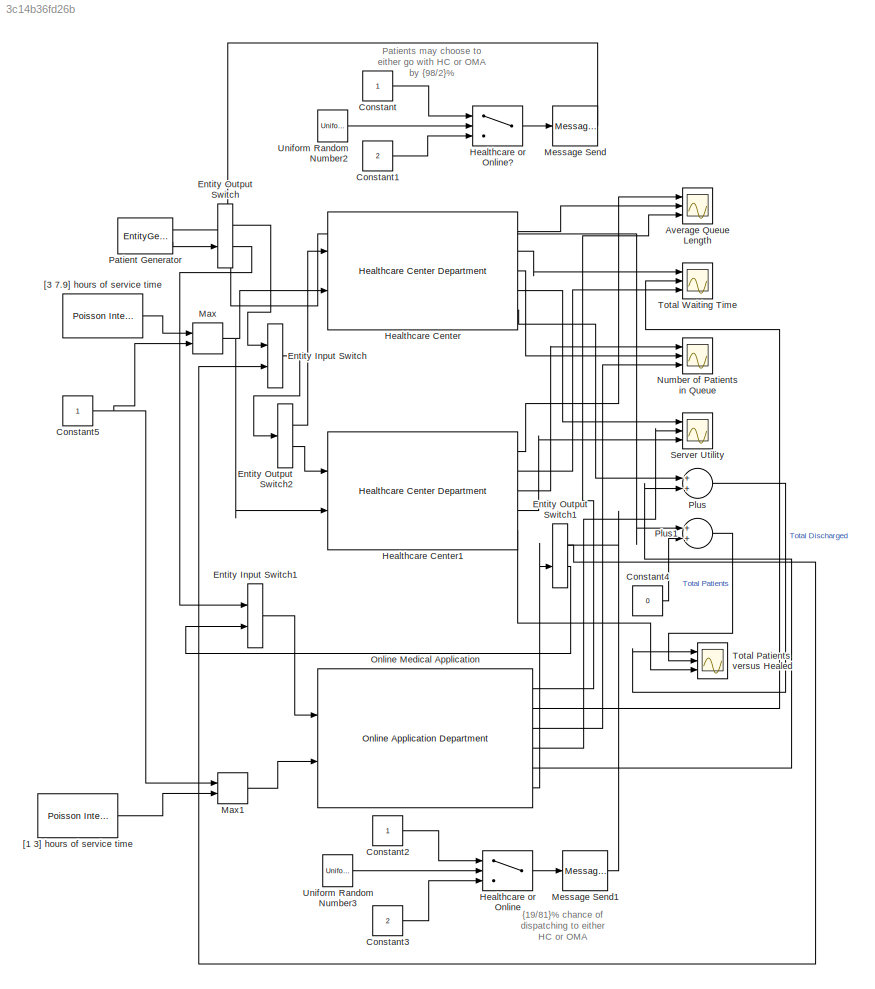
MODEL slx_3c14b36fd26b
KIND model
CONFIG AbsTol = auto
CONFIG EnableMultiTasking = off
CONFIG FixedStep = auto
CONFIG MaxStep = auto
CONFIG MinStep = auto
CONFIG RelTol = 1e-3
CONFIG SampleTimeConstraint = Unconstrained
CONFIG Solver = VariableStepAuto
CONFIG SolverName = VariableStepAuto
CONFIG StartTime = 0.0
CONFIG StopTime = 720
BLOCK [Scope] Average Queue Length
  Floating = off
  NumInputPorts = 3
  Ports = [3]
  ScopeSpecificationString = Simulink.scopes.TimeScopeBlockCfg('CurrentConfiguration', extmgr.ConfigurationSet(extmgr.Configuration('Core','General UI',true,'FigureColor',[0.831372549019608 0.815686274509804 0.784313725490196]),extmgr.Configuration('Core','Source UI',true),extmgr.Configuration('Sources','WiredSimulink',true,'DataLoggingVariableName','ScopeData1'),extmgr.Configuration('Visuals','Time Domain',true,'SerializedDi...<+2484ch>
BLOCK [Constant] Constant
  VectorParams1D = off
BLOCK [Constant] Constant1
  Value = 2
  VectorParams1D = off
BLOCK [Constant] Constant2
  VectorParams1D = off
BLOCK [Constant] Constant3
  Value = 2
  VectorParams1D = off
BLOCK [Constant] Constant4
  Value = 0
BLOCK [Constant] Constant5
  VectorParams1D = off
BLOCK [EntityInputSwitch] Entity Input Switch
  InputPortMap = u1,u2
  InputPortMessageModes = m,m
  OutputPortMap = o0
  OutputPortMessageModes = m
  Ports = [2, 1]
BLOCK [EntityInputSwitch] Entity Input Switch1
  InputPortMap = u1,u2
  InputPortMessageModes = m,m
  OutputPortMap = o0
  OutputPortMessageModes = m
  Ports = [2, 1]
BLOCK [EntityOutputSwitch] Entity Output Switch
  InputPortMap = u0,u1
  InputPortMessageModes = m,m
  OutputPortMap = o0,o1
  OutputPortMessageModes = m,m
  Ports = [2, 2]
  Seed = 12345
  SwitchAttributeName = Attribute1
  SwitchingCriterion = From control port
BLOCK [EntityOutputSwitch] Entity Output Switch1
  InputPortMap = u0,u1
  InputPortMessageModes = m,m
  OutputPortMap = o0,o1
  OutputPortMessageModes = m,m
  Ports = [2, 2]
  Seed = 12345
  SwitchAttributeName = Attribute1
  SwitchingCriterion = From control port
BLOCK [EntityOutputSwitch] Entity Output Switch2
  InputPortMap = u1
  InputPortMessageModes = m
  OutputPortMap = o0,o1
  OutputPortMessageModes = m,m
  Ports = [1, 2]
  SwitchAttributeName = Attribute1
BLOCK [Reference] Healthcare Center  REF=Healthcare_Center_Department/Healthcare Center Department
  Ports = [2, 5]
  SourceBlock = Healthcare_Center_Department/Healthcare Center Department
  SourceType = SubSystem
BLOCK [Reference] Healthcare Center1  REF=Healthcare_Center_Department/Healthcare Center Department
  Ports = [2, 5]
  SourceBlock = Healthcare_Center_Department/Healthcare Center Department
  SourceType = SubSystem
BLOCK [Switch] Healthcare or Online
  Criteria = u2 > Threshold
  InputSameDT = off
  SaturateOnIntegerOverflow = off
  Threshold = 0.81
BLOCK [Switch] Healthcare or Online?
  Criteria = u2 > Threshold
  InputSameDT = off
  SaturateOnIntegerOverflow = off
  Threshold = 0.02
BLOCK [MinMax] Max
  Function = max
  InputSameDT = off
  Inputs = 2
  Ports = [2, 1]
  SaturateOnIntegerOverflow = off
BLOCK [MinMax] Max1
  Function = max
  InputSameDT = off
  Inputs = 2
  Ports = [2, 1]
  SaturateOnIntegerOverflow = off
BLOCK [MessageSend] Message Send
  InputPortMap = u1
  OutputPortMessageModes = m
  Ports = [1, 1]
BLOCK [MessageSend] Message Send1
  InputPortMap = u1
  OutputPortMessageModes = m
  Ports = [1, 1]
BLOCK [Scope] Number of Patients in Queue
  Floating = off
  NumInputPorts = 3
  Ports = [3]
  ScopeSpecificationString = Simulink.scopes.TimeScopeBlockCfg('CurrentConfiguration', extmgr.ConfigurationSet(extmgr.Configuration('Core','General UI',true,'FigureColor',[0.831372549019608 0.815686274509804 0.784313725490196]),extmgr.Configuration('Core','Source UI',true),extmgr.Configuration('Sources','WiredSimulink',true,'DataLoggingVariableName','ScopeData2'),extmgr.Configuration('Visuals','Time Domain',true,'SerializedDi...<+2497ch>
BLOCK [Reference] Online Medical Application  REF=Online_Application_Department/Online Application Department
  Ports = [2, 6]
  SourceBlock = Online_Application_Department/Online Application Department
  SourceType = SubSystem
BLOCK [EntityGenerator] Patient Generator
  AttributeInitialValue = 0
  AttributeName = entity
  EntityTypeName = Entity
  IntergenerationTimeAction = dt = randi([1,15]);
  NumberEntitiesDeparted = on
  OutputPortMap = o0,o3
  OutputPortMessageModes = n,m
  Period = 0.00135
  Ports = [0, 2]
BLOCK [Sum] Plus
  InputSameDT = off
  OutDataTypeStr = Inherit: Inherit via internal rule
  Ports = [2, 1]
  SaturateOnIntegerOverflow = off
BLOCK [Sum] Plus1
  InputSameDT = off
  OutDataTypeStr = Inherit: Inherit via internal rule
  Ports = [2, 1]
  SaturateOnIntegerOverflow = off
BLOCK [Scope] Server Utility
  Floating = off
  NumInputPorts = 3
  Ports = [3]
  ScopeSpecificationString = Simulink.scopes.TimeScopeBlockCfg('CurrentConfiguration', extmgr.ConfigurationSet(extmgr.Configuration('Core','General UI',true,'FigureColor',[0.831372549019608 0.815686274509804 0.784313725490196]),extmgr.Configuration('Core','Source UI',true),extmgr.Configuration('Sources','WiredSimulink',true,'DataLoggingVariableName','ScopeData3'),extmgr.Configuration('Visuals','Time Domain',true,'SerializedDi...<+2457ch>
BLOCK [Scope] Total Patients versus Healed
  Floating = off
  NumInputPorts = 3
  Ports = [3]
  ScopeSpecificationString = Simulink.scopes.TimeScopeBlockCfg('CurrentConfiguration', extmgr.ConfigurationSet(extmgr.Configuration('Core','General UI',true,'FigureColor',[0.831372549019608 0.815686274509804 0.784313725490196]),extmgr.Configuration('Core','Source UI',true),extmgr.Configuration('Sources','WiredSimulink',true,'DataLoggingVariableName','ScopeData2'),extmgr.Configuration('Visuals','Time Domain',true,'SerializedDi...<+2490ch>
BLOCK [Scope] Total Waiting Time
  Floating = off
  NumInputPorts = 3
  Ports = [3]
  ScopeSpecificationString = Simulink.scopes.TimeScopeBlockCfg('CurrentConfiguration', extmgr.ConfigurationSet(extmgr.Configuration('Core','General UI',true,'FigureColor',[0.831372549019608 0.815686274509804 0.784313725490196]),extmgr.Configuration('Core','Source UI',true),extmgr.Configuration('Sources','WiredSimulink',true,'DataLoggingVariableName','ScopeData1'),extmgr.Configuration('Visuals','Time Domain',true,'SerializedDi...<+2466ch>
BLOCK [UniformRandomNumber] Uniform Random Number2
  Minimum = 0
  SampleTime = 0.01
  Seed = 1325435
BLOCK [UniformRandomNumber] Uniform Random Number3
  Minimum = 0
  SampleTime = 0.01
  Seed = 1325435
BLOCK [Reference] [1 3] hours of service time   REF=commrandsrc3/Poisson Integer
Generator
  Ports = [0, 1]
  SourceBlock = commrandsrc3/Poisson Integer\nGenerator
  SourceProductBaseCode = CM
  SourceProductName = Communications Toolbox
  SourceType = Poisson Integer Generator
BLOCK [Reference] [3 7.9] hours of service time   REF=commrandsrc3/Poisson Integer
Generator
  Ports = [0, 1]
  SourceBlock = commrandsrc3/Poisson Integer\nGenerator
  SourceProductBaseCode = CM
  SourceProductName = Communications Toolbox
  SourceType = Poisson Integer Generator
ANNOTATION (root): Patients may choose to either go with HC or OMA by {98/2}%
ANNOTATION (root): {19/81}% chance of dispatching to either HC or OMA
LINE Constant1:1 -> Healthcare or Online?:3
LINE Constant2:1 -> Healthcare or Online:1
LINE Constant3:1 -> Healthcare or Online:3
LINE Constant4:1 -> Plus1:2
NET Constant5:1 -> Max1:1, Max:2
LINE Constant:1 -> Healthcare or Online?:1
LINE Entity Input Switch1:1 -> Online Medical Application:1
LINE Entity Input Switch:1 -> Entity Output Switch2:1
LINE Entity Output Switch1:1 -> Entity Input Switch:2
LINE Entity Output Switch1:2 -> Entity Input Switch1:2
LINE Entity Output Switch2:1 -> Healthcare Center:1
LINE Entity Output Switch2:2 -> Healthcare Center1:1
LINE Entity Output Switch:1 -> Entity Input Switch:1
LINE Entity Output Switch:2 -> Entity Input Switch1:1
LINE Healthcare Center1:1 -> Average Queue Length:1
LINE Healthcare Center1:2 -> Total Waiting Time:3
LINE Healthcare Center1:3 -> Number of Patients in Queue:1
LINE Healthcare Center1:4 -> Server Utility:3
LINE Healthcare Center1:5 -> Total Patients versus Healed:3
LINE Healthcare Center:1 -> Average Queue Length:2
LINE Healthcare Center:2 -> Total Waiting Time:1
LINE Healthcare Center:3 -> Number of Patients in Queue:2
LINE Healthcare Center:4 -> Server Utility:1
LINE Healthcare Center:5 -> Plus:1
LINE Healthcare or Online:1 -> Message Send1:1
LINE Healthcare or Online?:1 -> Message Send:1
LINE Max1:1 -> Online Medical Application:2
NET Max:1 -> Healthcare Center1:2, Healthcare Center:2
LINE Message Send1:1 -> Entity Output Switch1:1
LINE Message Send:1 -> Entity Output Switch:1
LINE Online Medical Application:1 -> Average Queue Length:3
LINE Online Medical Application:2 -> Total Waiting Time:2
LINE Online Medical Application:3 -> Number of Patients in Queue:3
LINE Online Medical Application:4 -> Server Utility:2
LINE Online Medical Application:5 -> Plus:2
LINE Online Medical Application:6 -> Entity Output Switch1:2
LINE Patient Generator:1 -> Plus1:1
LINE Patient Generator:2 -> Entity Output Switch:2
LINE Plus1:1 -> Total Patients versus Healed:2
LINE Plus:1 -> Total Patients versus Healed:1
LINE Uniform Random Number2:1 -> Healthcare or Online?:2
LINE Uniform Random Number3:1 -> Healthcare or Online:2
LINE [1 3] hours of service time :1 -> Max1:2
LINE [3 7.9] hours of service time :1 -> Max:1
note: NET lines group one-source signal fan-out (src -> all destinations, sorted); 1:1 wires keep LINE
